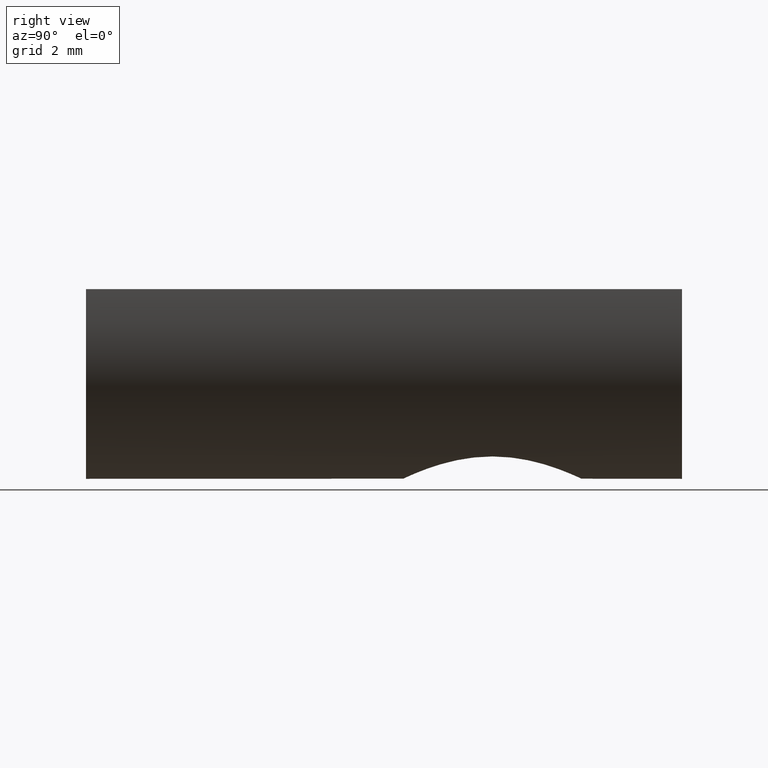
[diagram: clean part render]
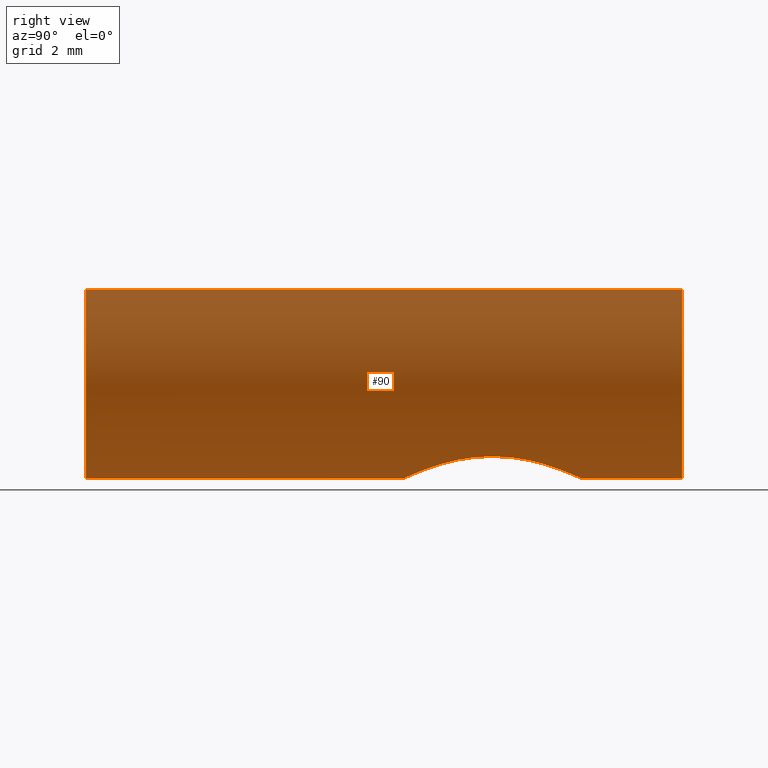
[diagram: same view with one face highlighted and labeled with its STEP entity id]
A machine part, right view. The second image highlights one B-rep face of the part: STEP entity #90.
In plain terms, the highlighted cylindrical surface (partial cylindrical patch) has radius 7 mm, axis along (0, -1, 0).
Its self-contained STEP definition (entity closure, byte-faithful):
#2=CARTESIAN_POINT('',(0.000000955008075,6.999998446000063,0.000011410006200));
#3=DIRECTION('',(0.0,-1.0,6.123234E-017));
#4=DIRECTION('',(1.0,0.0,0.0));
#5=AXIS2_PLACEMENT_3D('',#2,#3,#4);
#6=CYLINDRICAL_SURFACE('',#5,6.999998446010341);
#7=CARTESIAN_POINT('',(-6.999997490998146,6.999998446000063,0.000003814998640));
#8=VERTEX_POINT('',#7);
#9=CARTESIAN_POINT('',(6.999999401001860,6.999998446000063,-0.000003814999682));
#10=VERTEX_POINT('',#9);
#11=CARTESIAN_POINT('',(0.000000955008075,6.999998446000063,0.000011410006200));
#12=DIRECTION('',(0.0,-1.0,6.123234E-017));
#13=DIRECTION('',(1.0,0.0,0.0));
#14=AXIS2_PLACEMENT_3D('',#11,#12,#13);
#15=CIRCLE('',#14,6.999998446010341);
#16=EDGE_CURVE('',#8,#10,#15,.T.);
#17=ORIENTED_EDGE('',*,*,#16,.T.);
#18=CARTESIAN_POINT('',(6.999999401001860,-15.000001553999937,-0.000003814999682));
#19=VERTEX_POINT('',#18);
#20=CARTESIAN_POINT('',(6.999999401001860,6.999998446000063,-0.000003814999682));
#21=DIRECTION('',(0.0,-1.0,0.0));
#22=VECTOR('',#21,22.0);
#23=LINE('',#20,#22);
#24=EDGE_CURVE('',#10,#19,#23,.T.);
#25=ORIENTED_EDGE('',*,*,#24,.T.);
#26=CARTESIAN_POINT('',(-6.999997490998146,-15.000001553999937,0.000003814998640));
#27=VERTEX_POINT('',#26);
#28=CARTESIAN_POINT('',(0.000000955008075,-15.000001553999937,0.000011410006200));
#29=DIRECTION('',(0.0,-1.0,6.123234E-017));
#30=DIRECTION('',(1.0,0.0,0.0));
#31=AXIS2_PLACEMENT_3D('',#28,#29,#30);
#32=CIRCLE('',#31,6.999998446010341);
#33=EDGE_CURVE('',#27,#19,#32,.T.);
#34=ORIENTED_EDGE('',*,*,#33,.F.);
#35=CARTESIAN_POINT('',(-6.999997490998146,6.999998446000063,0.000003814998640));
#36=DIRECTION('',(0.0,-1.0,0.0));
#37=VECTOR('',#36,22.0);
#38=LINE('',#35,#37);
#39=EDGE_CURVE('',#8,#27,#38,.T.);
#40=ORIENTED_EDGE('',*,*,#39,.F.);
#41=EDGE_LOOP('',(#17,#25,#34,#40));
#42=FACE_OUTER_BOUND('',#41,.T.);
#43=CARTESIAN_POINT('',(-3.300003364456766,0.0,-6.173314252524539));
#44=VERTEX_POINT('',#43);
#45=CARTESIAN_POINT('',(3.299992852333285,-0.000020889490975,-6.173319727199589));
#46=VERTEX_POINT('',#45);
#47=CARTESIAN_POINT('',(-3.300003364456767,0.0,-6.173314252524538));
#48=CARTESIAN_POINT('',(-3.300003364456767,-0.216592287537082,-6.173314252524538));
#49=CARTESIAN_POINT('',(-3.253570001160712,-0.684654513216174,-6.198432082927015));
#50=CARTESIAN_POINT('',(-3.038407654959035,-1.353613326221307,-6.309011421462197));
#51=CARTESIAN_POINT('',(-2.681524053115545,-1.963923112969724,-6.471027704297446));
#52=CARTESIAN_POINT('',(-2.138626438944582,-2.562897121306833,-6.676672728039712));
#53=CARTESIAN_POINT('',(-1.366635591082300,-3.063597930802757,-6.888619192103640));
#54=CARTESIAN_POINT('',(-0.478608482021251,-3.301211996315487,-7.000583489241347));
#55=CARTESIAN_POINT('',(0.321421266252973,-3.307981518365068,-7.003731042625636));
#56=CARTESIAN_POINT('',(1.041146720527176,-3.163393036934508,-6.935721788578824));
#57=CARTESIAN_POINT('',(1.682582575151504,-2.867134064475636,-6.803843863030280));
#58=CARTESIAN_POINT('',(2.263291411441778,-2.433535280280353,-6.631354257933576));
#59=CARTESIAN_POINT('',(2.679408314933848,-1.963797782228880,-6.471102793983822));
#60=CARTESIAN_POINT('',(3.074221040633775,-1.285098186845858,-6.292858814741878));
#61=CARTESIAN_POINT('',(3.268011320131505,-0.637386430379658,-6.190397753453220));
#62=CARTESIAN_POINT('',(3.299987240869187,-0.142129667646134,-6.173322918863830));
#63=CARTESIAN_POINT('',(3.299992852333285,-0.000020889490975,-6.173319727199589));
#64=B_SPLINE_CURVE_WITH_KNOTS('',3,(#47,#48,#49,#50,#51,#52,#53,#54,#55,#56,#57,#58,#59,#60,#61,#62,#63),.UNSPECIFIED.,.F.,.U.,(4,1,1,1,1,1,1,1,1,1,1,1,1,1,4),(0.0,0.651094446390009,1.402267899264770,2.119441001419518,2.814718008005210,3.892921611442397,4.916324967857486,5.554774339244308,6.278809135607546,7.112399148425639,7.693260843069978,8.505932766317709,9.042314635357180,10.101491428501644,10.527734594299886),.UNSPECIFIED.);
#65=EDGE_CURVE('',#44,#46,#64,.T.);
#66=ORIENTED_EDGE('',*,*,#65,.T.);
#67=CARTESIAN_POINT('',(3.299992852333285,-0.000020889490975,-6.173319727199589));
#68=CARTESIAN_POINT('',(3.299994695736959,0.046662799289979,-6.173318678716433));
#69=CARTESIAN_POINT('',(3.295215840773426,0.272522576113141,-6.175870129219019));
#70=CARTESIAN_POINT('',(3.243911903063554,0.683772560741204,-6.203357878924277));
#71=CARTESIAN_POINT('',(3.059784871582622,1.300149212919109,-6.297806809865221));
#72=CARTESIAN_POINT('',(2.709602884174238,1.940990930712360,-6.461121946065397));
#73=CARTESIAN_POINT('',(2.208799636140926,2.484790815747715,-6.650341600900499));
#74=CARTESIAN_POINT('',(1.553513318095340,2.949222237708682,-6.838111675993170));
#75=CARTESIAN_POINT('',(0.723628266827463,3.275119530491111,-6.987699098873556));
#76=CARTESIAN_POINT('',(-0.175528433830671,3.329947100106892,-7.014111747605420));
#77=CARTESIAN_POINT('',(-0.962879635065766,3.180911178429824,-6.944043435715090));
#78=CARTESIAN_POINT('',(-1.656636344469283,2.893442479632199,-6.814733912651117));
#79=CARTESIAN_POINT('',(-2.257516735172318,2.445039672208736,-6.633870000951496));
#80=CARTESIAN_POINT('',(-2.815772811084056,1.791648917962903,-6.416649661340756));
#81=CARTESIAN_POINT('',(-3.153275891358001,1.095033506260620,-6.251078085550209));
#82=CARTESIAN_POINT('',(-3.284160287048595,0.422340401687507,-6.181800436693315));
#83=CARTESIAN_POINT('',(-3.300003364456767,0.112304639146146,-6.173314252524538));
#84=CARTESIAN_POINT('',(-3.300003364456767,0.0,-6.173314252524538));
#85=B_SPLINE_CURVE_WITH_KNOTS('',3,(#67,#68,#69,#70,#71,#72,#73,#74,#75,#76,#77,#78,#79,#80,#81,#82,#83,#84),.UNSPECIFIED.,.F.,.U.,(4,1,1,1,1,1,1,1,1,1,1,1,1,1,1,4),(10.527734594299886,10.667758339176558,11.205190802664079,11.768643395944075,12.610024459917462,13.432569248399009,14.042363182200283,15.075063922416453,16.108852976160737,16.705722975605507,17.476218501787852,18.378407614823661,18.999549015439069,20.125712919640915,20.718379559958585,21.055469188599773),.UNSPECIFIED.);
#86=EDGE_CURVE('',#46,#44,#85,.T.);
#87=ORIENTED_EDGE('',*,*,#86,.T.);
#88=EDGE_LOOP('',(#66,#87));
#89=FACE_BOUND('',#88,.T.);
#90=ADVANCED_FACE('',(#42,#89),#6,.T.);